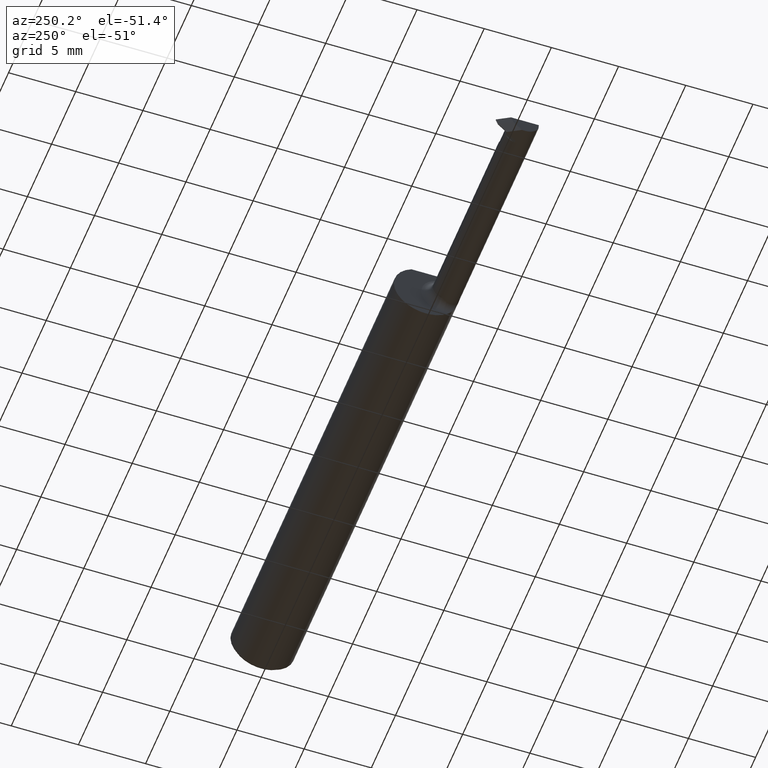
[diagram: clean part render]
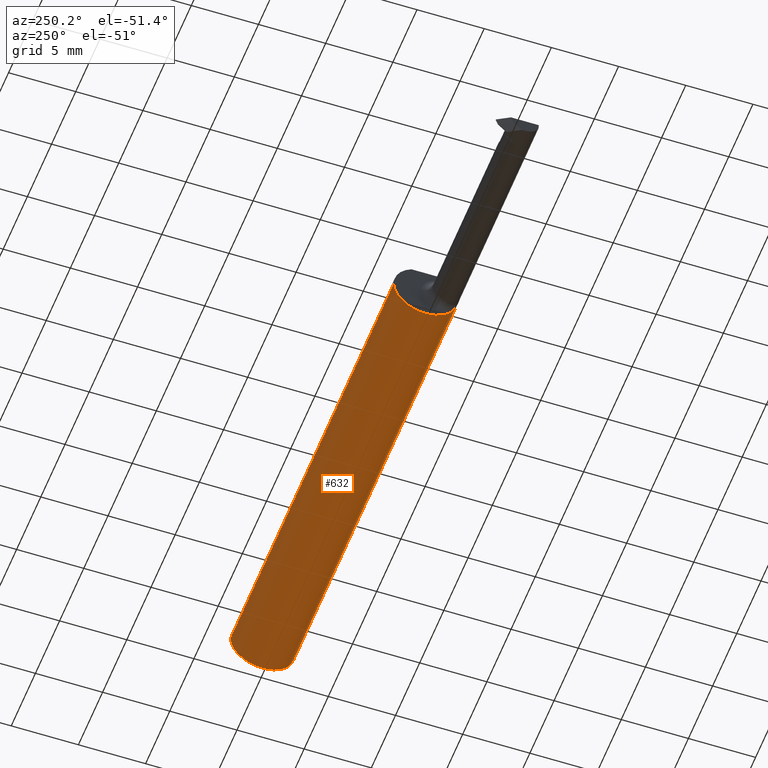
[diagram: same view with one face highlighted and labeled with its STEP entity id]
A machine part, auxiliary view. The second image highlights one B-rep face of the part: STEP entity #632.
In plain terms, the highlighted cylindrical surface (edge-blend (fillet) strip) has radius 2.3774 mm, axis along (1, 0, -0).
Its self-contained STEP definition (entity closure, byte-faithful):
#26 = ORIENTED_EDGE ( 'NONE', *, *, #737, .F. ) ;
#28 = AXIS2_PLACEMENT_3D ( 'NONE', #363, #1004, #838 ) ;
#46 = CARTESIAN_POINT ( 'NONE',  ( -2.000000000000000000, -0.09207014925373151193, -0.01685371224376489355 ) ) ;
#58 = ORIENTED_EDGE ( 'NONE', *, *, #174, .T. ) ;
#65 = CARTESIAN_POINT ( 'NONE',  ( -1.339999999999999858, 1.959434878635771270E-17, 0.000000000000000000 ) ) ;
#71 = LINE ( 'NONE', #942, #698 ) ;
#74 = VECTOR ( 'NONE', #562, 39.37007874015748143 ) ;
#80 = CARTESIAN_POINT ( 'NONE',  ( -2.000000000000000000, -0.09360000000000014142, 7.549139889266259604E-20 ) ) ;
#106 = CIRCLE ( 'NONE', #346, 0.09360000000000007203 ) ;
#119 = EDGE_CURVE ( 'NONE', #163, #664, #547, .T. ) ;
#120 = CARTESIAN_POINT ( 'NONE',  ( -0.009999999999999630712, 0.09360000000000028020, 0.000000000000000000 ) ) ;
#133 = CARTESIAN_POINT ( 'NONE',  ( -0.009999999999999609895, -0.09359999999999989162, 1.146269404001923546E-17 ) ) ;
#136 = VERTEX_POINT ( 'NONE', #869 ) ;
#149 = CARTESIAN_POINT ( 'NONE',  ( -1.340550322315970710, -0.07386771902689347191, -0.05772280571356890738 ) ) ;
#161 = CARTESIAN_POINT ( 'NONE',  ( -1.339999999999999858, -0.06665037313362623395, -0.06571672360269598112 ) ) ;
#163 = VERTEX_POINT ( 'NONE', #120 ) ;
#170 = AXIS2_PLACEMENT_3D ( 'NONE', #65, #550, #872 ) ;
#174 = EDGE_CURVE ( 'NONE', #274, #690, #106, .T. ) ;
#190 = CYLINDRICAL_SURFACE ( 'NONE', #28, 0.09360000000000007203 ) ;
#213 = CARTESIAN_POINT ( 'NONE',  ( -2.000000000000000000, -0.09360000000000014142, 1.146269404001923546E-17 ) ) ;
#225 = CARTESIAN_POINT ( 'NONE',  ( -1.339999999999999858, -0.06665037313362623395, -0.06571672360269598112 ) ) ;
#247 = DIRECTION ( 'NONE',  ( 1.000000000000000000, 1.224646799147353700E-16, -0.000000000000000000 ) ) ;
#256 = DIRECTION ( 'NONE',  ( -1.140094147996903776E-16, 1.000000000000000000, 0.000000000000000000 ) ) ;
#274 = VERTEX_POINT ( 'NONE', #900 ) ;
#300 = DIRECTION ( 'NONE',  ( 1.000000000000000000, 1.224646799147353700E-16, -0.000000000000000000 ) ) ;
#311 = CARTESIAN_POINT ( 'NONE',  ( -0.009999999999999620304, 1.824723730729557662E-16, 0.000000000000000000 ) ) ;
#318 = EDGE_CURVE ( 'NONE', #136, #163, #71, .T. ) ;
#346 = AXIS2_PLACEMENT_3D ( 'NONE', #977, #906, #420 ) ;
#351 = VECTOR ( 'NONE', #247, 39.37007874015748143 ) ;
#359 = VERTEX_POINT ( 'NONE', #540 ) ;
#361 = CARTESIAN_POINT ( 'NONE',  ( -1.360040276532713532, -0.09170035127621850579, -0.01877567467124079126 ) ) ;
#363 = CARTESIAN_POINT ( 'NONE',  ( -2.000000000000000000, -6.123233995736764803E-17, 0.000000000000000000 ) ) ;
#366 = ORIENTED_EDGE ( 'NONE', *, *, #520, .F. ) ;
#377 = CARTESIAN_POINT ( 'NONE',  ( -1.364999999999999769, -0.09207014925373140091, -0.01685371224376553193 ) ) ;
#380 = DIRECTION ( 'NONE',  ( 1.000000000000000000, 1.224646799147353700E-16, -0.000000000000000000 ) ) ;
#394 = VECTOR ( 'NONE', #380, 39.37007874015748143 ) ;
#420 = DIRECTION ( 'NONE',  ( 0.000000000000000000, 1.000000000000000000, 0.000000000000000000 ) ) ;
#425 = EDGE_CURVE ( 'NONE', #433, #510, #674, .T. ) ;
#433 = VERTEX_POINT ( 'NONE', #377 ) ;
#440 = CARTESIAN_POINT ( 'NONE',  ( -1.362324523699151690, -0.09197884972478752308, -0.01736005722476433380 ) ) ;
#441 = ORIENTED_EDGE ( 'NONE', *, *, #926, .T. ) ;
#452 = CARTESIAN_POINT ( 'NONE',  ( -1.364999999999999769, -0.09207014925373140091, -0.01685371224376553193 ) ) ;
#510 = VERTEX_POINT ( 'NONE', #161 ) ;
#514 = ORIENTED_EDGE ( 'NONE', *, *, #425, .T. ) ;
#520 = EDGE_CURVE ( 'NONE', #274, #359, #728, .T. ) ;
#522 = FACE_OUTER_BOUND ( 'NONE', #642, .T. ) ;
#540 = CARTESIAN_POINT ( 'NONE',  ( -1.910000000000000142, -0.09360000000000014142, 0.000000000000000000 ) ) ;
#547 = CIRCLE ( 'NONE', #948, 0.09360000000000007203 ) ;
#550 = DIRECTION ( 'NONE',  ( 1.000000000000000000, 0.000000000000000000, 0.000000000000000000 ) ) ;
#562 = DIRECTION ( 'NONE',  ( 1.000000000000000000, 0.000000000000000000, 0.000000000000000000 ) ) ;
#605 = CARTESIAN_POINT ( 'NONE',  ( -1.350331455114083257, -0.08838398833666651078, -0.03113919291484569876 ) ) ;
#619 = CARTESIAN_POINT ( 'NONE',  ( -1.356246460913115515, -0.09087368479270957478, -0.02250960670050207793 ) ) ;
#620 = ORIENTED_EDGE ( 'NONE', *, *, #777, .T. ) ;
#632 = ADVANCED_FACE ( 'NONE', ( #522 ), #190, .T. ) ;
#642 = EDGE_LOOP ( 'NONE', ( #26, #366, #58, #441, #514, #620, #890, #815 ) ) ;
#664 = VERTEX_POINT ( 'NONE', #133 ) ;
#674 = B_SPLINE_CURVE_WITH_KNOTS ( 'NONE', 3,
 ( #452, #778, #440, #361, #1010, #619, #688, #605, #938, #1002, #857, #149, #784, #225 ),
 .UNSPECIFIED., .F., .F.,
 ( 4, 2, 2, 2, 2, 2, 4 ),
 ( 1.967287740770889863E-07, 0.0001030870799343363555, 0.0002059774310945956051, 0.0004117581334151138874, 0.0008233195380561389052, 0.001234880942697163869, 0.001646442347338188724 ),
 .UNSPECIFIED. ) ;
#688 = CARTESIAN_POINT ( 'NONE',  ( -1.354665360541798202, -0.09032542640521599997, -0.02464512177160835260 ) ) ;
#690 = VERTEX_POINT ( 'NONE', #46 ) ;
#698 = VECTOR ( 'NONE', #300, 39.37007874015748143 ) ;
#728 = LINE ( 'NONE', #80, #351 ) ;
#737 = EDGE_CURVE ( 'NONE', #359, #664, #1014, .T. ) ;
#777 = EDGE_CURVE ( 'NONE', #510, #136, #1011, .T. ) ;
#778 = CARTESIAN_POINT ( 'NONE',  ( -1.363627452150735220, -0.09207014925373128988, -0.01685371224376585805 ) ) ;
#784 = CARTESIAN_POINT ( 'NONE',  ( -1.339999999999961666, -0.07042526556275240102, -0.06188820058587436723 ) ) ;
#815 = ORIENTED_EDGE ( 'NONE', *, *, #119, .T. ) ;
#838 = DIRECTION ( 'NONE',  ( 0.000000000000000000, 1.000000000000000000, 0.000000000000000000 ) ) ;
#857 = CARTESIAN_POINT ( 'NONE',  ( -1.342599756578938930, -0.07984340602526643349, -0.04912629365184133234 ) ) ;
#869 = CARTESIAN_POINT ( 'NONE',  ( -1.339999999999999858, 0.09360000000000009979, 0.000000000000000000 ) ) ;
#872 = DIRECTION ( 'NONE',  ( 0.000000000000000000, 8.881784197001252323E-16, 1.000000000000000000 ) ) ;
#877 = CARTESIAN_POINT ( 'NONE',  ( -1.658107695154586558, -0.09207014925373133152, -0.01685371224376547294 ) ) ;
#890 = ORIENTED_EDGE ( 'NONE', *, *, #318, .T. ) ;
#900 = CARTESIAN_POINT ( 'NONE',  ( -2.000000000000000000, -0.09360000000000014142, 7.549139889266262011E-20 ) ) ;
#906 = DIRECTION ( 'NONE',  ( 1.000000000000000000, 1.224646799147353700E-16, -0.000000000000000000 ) ) ;
#926 = EDGE_CURVE ( 'NONE', #690, #433, #967, .T. ) ;
#938 = CARTESIAN_POINT ( 'NONE',  ( -1.347994345349506684, -0.08669318782772927889, -0.03564240466984397449 ) ) ;
#942 = CARTESIAN_POINT ( 'NONE',  ( -2.000000000000000000, 0.09360000000000001652, 0.000000000000000000 ) ) ;
#948 = AXIS2_PLACEMENT_3D ( 'NONE', #311, #971, #256 ) ;
#967 = LINE ( 'NONE', #877, #74 ) ;
#971 = DIRECTION ( 'NONE',  ( -1.000000000000000000, -1.224646799147374408E-16, 0.000000000000000000 ) ) ;
#977 = CARTESIAN_POINT ( 'NONE',  ( -2.000000000000000000, -6.123233995736764803E-17, 0.000000000000000000 ) ) ;
#1002 = CARTESIAN_POINT ( 'NONE',  ( -1.344085356245733109, -0.08239036684815401190, -0.04469806793374252185 ) ) ;
#1004 = DIRECTION ( 'NONE',  ( 1.000000000000000000, 1.224646799147353700E-16, -0.000000000000000000 ) ) ;
#1010 = CARTESIAN_POINT ( 'NONE',  ( -1.359025502329813451, -0.09151353859652798517, -0.01967662315911436130 ) ) ;
#1011 = CIRCLE ( 'NONE', #170, 0.09360000000000007203 ) ;
#1014 = LINE ( 'NONE', #213, #394 ) ;